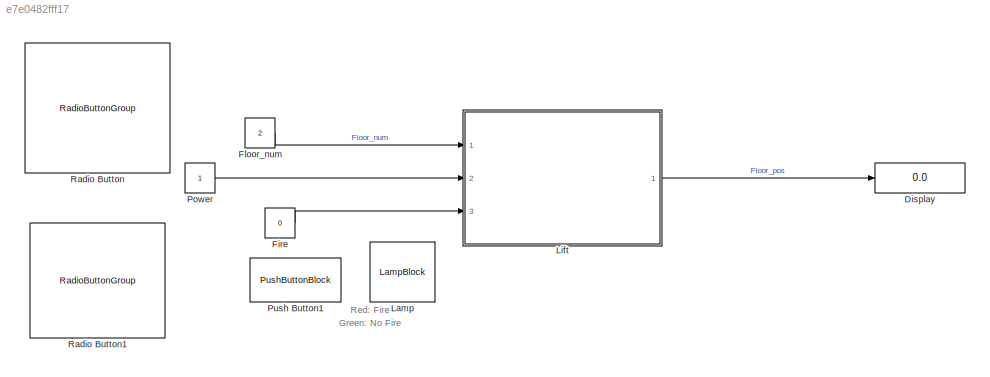
MODEL slx_e7e0482fff17
KIND model
CONFIG AbsTol = auto
CONFIG EnableMultiTasking = off
CONFIG FixedStep = auto
CONFIG MaxStep = auto
CONFIG MinStep = auto
CONFIG RelTol = 1e-3
CONFIG SampleTimeConstraint = Unconstrained
CONFIG SolverName = VariableStepAuto
CONFIG StartTime = 0.0
CONFIG StopTime = 10
BLOCK [Display] Display
  Decimation = 1
  Ports = [1]
BLOCK [Constant] Fire
  Value = 0
BLOCK [Constant] Floor_num
  Value = 2
BLOCK [LampBlock] Lamp
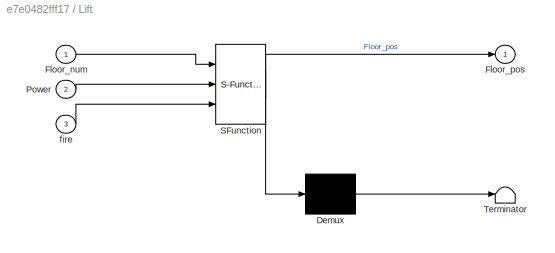
BLOCK [SubSystem] Lift
  ErrorFcn = Stateflow.Translate.translate
  PermitHierarchicalResolution = ExplicitOnly
  Ports = [3, 1]
  RequestExecContextInheritance = off
  SFBlockType = Chart
  TreatAsAtomicUnit = on
BLOCK [Demux] Lift/ Demux 
  Outputs = 1
  Ports = [1, 1]
BLOCK [S-Function] Lift/ SFunction 
  EnableBusSupport = on
  FunctionName = sf_sfun
  PortCounts = [3 2]
  Ports = [3, 2]
  SFcnIsStateOwnerBlock = off
  SFunctionDeploymentMode = off
  Tag = Stateflow S-Function 3
BLOCK [Terminator] Lift/ Terminator 
BLOCK [Inport] Lift/Floor_num
BLOCK [Outport] Lift/Floor_pos
BLOCK [Inport] Lift/Power
  Port = 2
BLOCK [Inport] Lift/fire
  Port = 3
BLOCK [Constant] Power
BLOCK [PushButtonBlock] Push Button1
  ButtonText = Fire
BLOCK [RadioButtonGroup] Radio Button
  ButtonGroupName = Group
  SelectedLabel = 2nd floor
BLOCK [RadioButtonGroup] Radio Button1
  ButtonGroupName = Group
  SelectedLabel = PowerOn
ANNOTATION (root): Green: No Fire Red: Fire
LINE Fire:1 -> Lift:3
LINE Floor_num:1 -> Lift:1
LINE Lift:1 -> Display:1
LINE Power:1 -> Lift:2
CHART Lift states=23 transitions=31
  STATE_LABEL 'PowerOn'
  STATE_LABEL 'Alarm\nduring:\nAlarmStatus = fire;\nfirestatus(AlarmStatus);\n'
  STATE_LABEL 'Lift'
  STATE_LABEL 'Floor5'
  STATE_LABEL 'Dooropen1\nen:time=1;\ndu:time = time+1;'
  STATE_LABEL 'Doorclose1\nen:time=1;'
  STATE_LABEL '[time==10]'
  STATE_LABEL 'Floor4'
  STATE_LABEL 'Dooropen\nen:time=1;\ndu:time = time+1;'
  STATE_LABEL 'Doorclose\nen:time=1;'
  STATE_LABEL '[time==10]'
  STATE_LABEL 'Floor3\n'
  STATE_LABEL 'Dooropen\nen:time=1;\ndu:time = time+1;'
  STATE_LABEL 'Doorclose\nen:time=1;'
  STATE_LABEL '[time==10]'
  STATE_LABEL 'Floor2\n'
  STATE_LABEL 'Dooropen\nen:time=1;\ndu:time = time+1;'
  STATE_LABEL 'Doorclose\nen:time=1;'
  STATE_LABEL '[time==10]'
  STATE_LABEL 'Floor1\nen:\nFloor_pos=1;\n'
  STATE_LABEL 'Dooropen\nen:time=1;\ndu:time = time+1;'
  STATE_LABEL 'Doorclose\nen:time=1;\nex:time=1;'
  STATE_LABEL '[time==10]'
  STATE_LABEL '[Floor_num>4]{Floor_pos =Floor_pos +1;}'
  STATE_LABEL '[Floor_num<5]{Floor_pos =Floor_pos -1;}'
  STATE_LABEL '[Floor_num>3]{Floor_pos =Floor_pos +1;}'
  STATE_LABEL '[Floor_num<4]{Floor_pos =Floor_pos -1;}'
  STATE_LABEL '[Floor_num>2]{Floor_pos =Floor_pos +1;}'
  STATE_LABEL '[Floor_num<3]{Floor_pos =Floor_pos -1;}'
  STATE_LABEL '[Floor_num>1]{Floor_pos =Floor_pos +1;}'
  STATE_LABEL '[Floor_num<2]{Floor_pos =Floor_pos -1;}'
  STATE_LABEL 'firestatus(AlarmSt)'
  STATE_LABEL '[AlarmSt ==0]'
  STATE_LABEL '{signal=1;}'
  STATE_LABEL '{signal=0;}'
  STATE_LABEL 'Fan\n'
  STATE_LABEL 'FanOn\n'
  STATE_LABEL 'FanOff\n'
  STATE_LABEL '[Power==0]'
  STATE_LABEL '[Power==1]'
CHART  states=0 transitions=0
